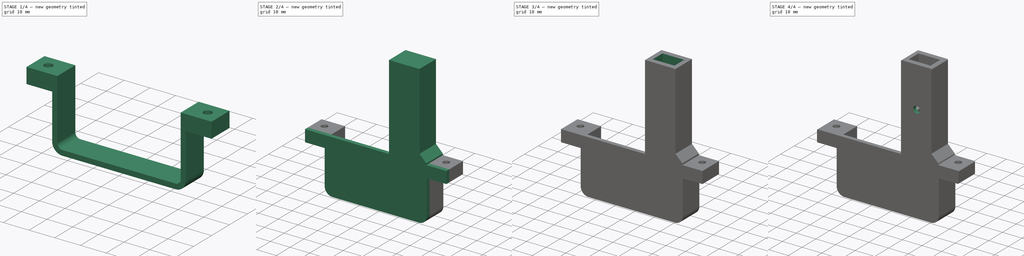
[diagram: build sequence overview — one tinted view per stage of 4, left to right]
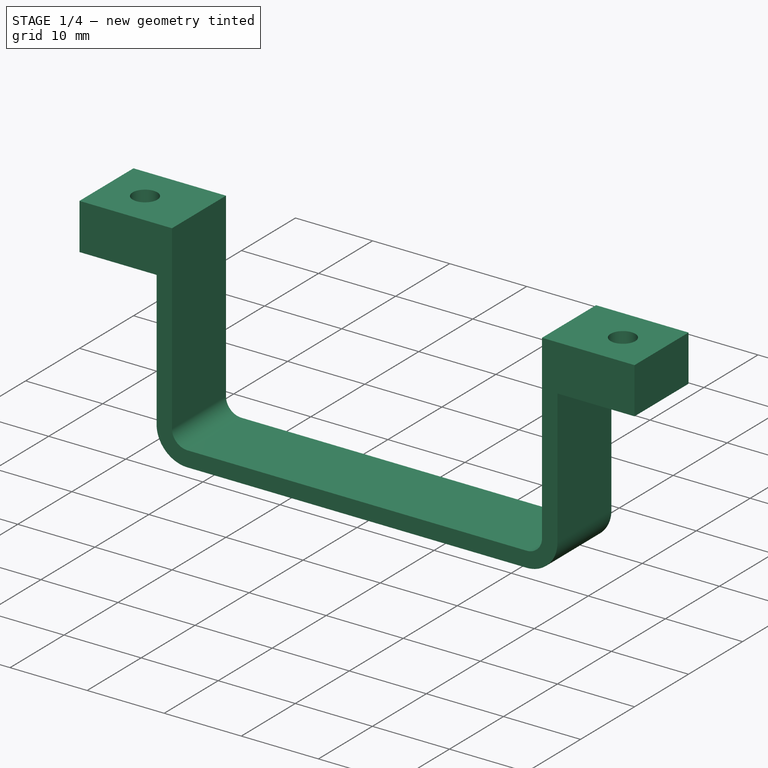
[diagram: stage 1 of 4 — iso view after this stage's code; geometry added in this stage tinted green]
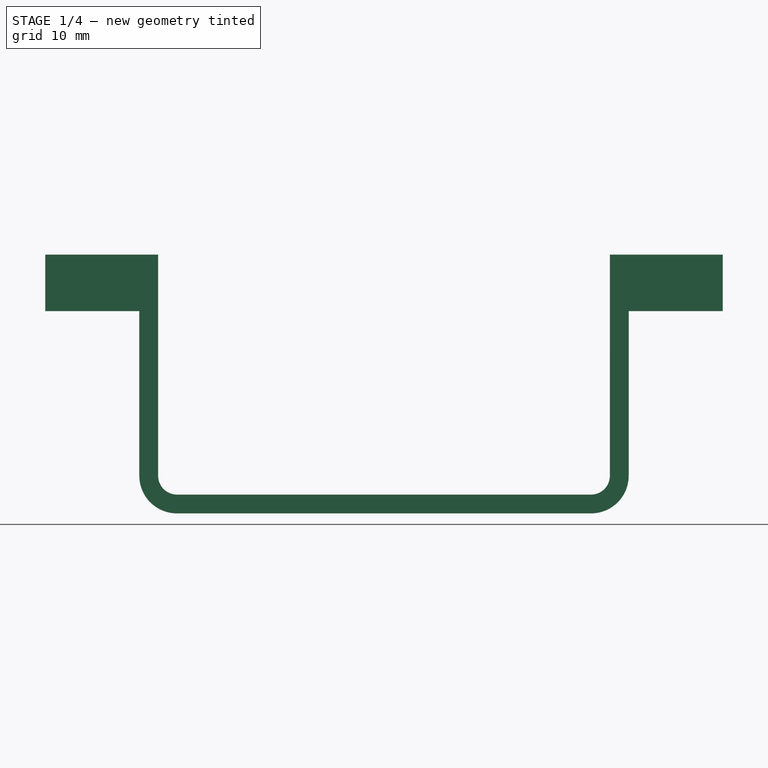
[diagram: stage 1 of 4 — front view after this stage's code; geometry added in this stage tinted green]
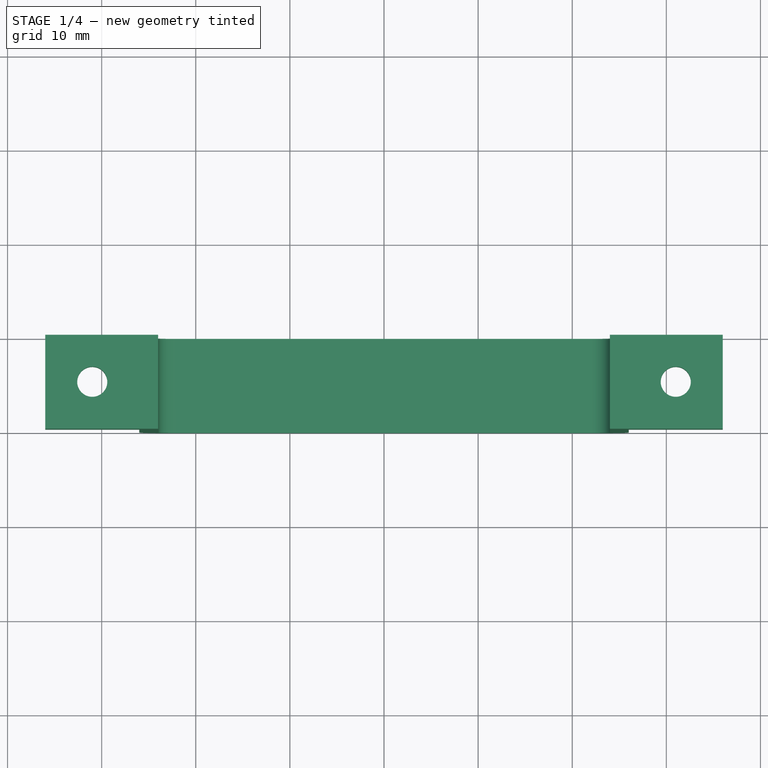
[diagram: stage 1 of 4 — top view after this stage's code; geometry added in this stage tinted green]
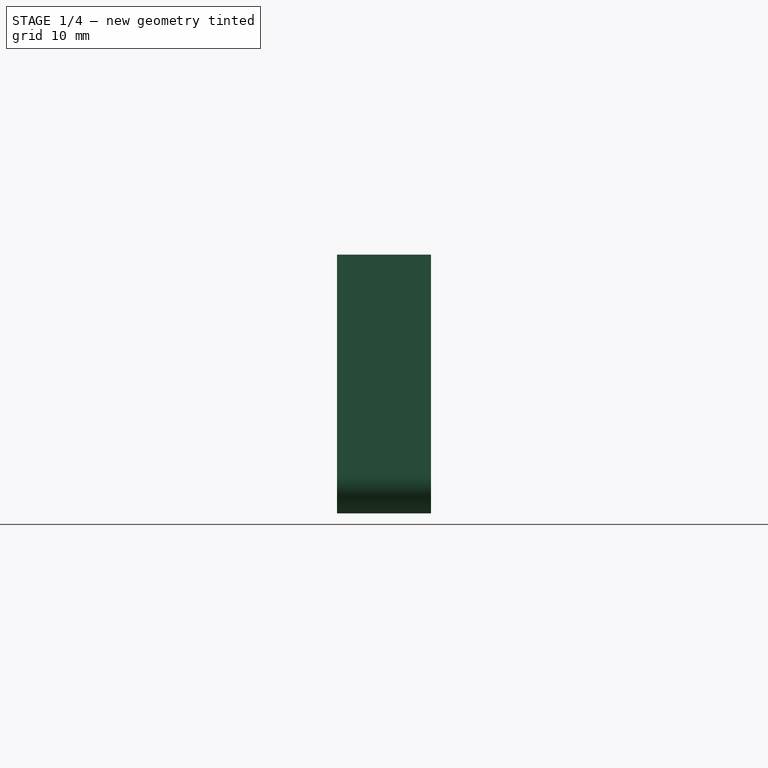
[diagram: stage 1 of 4 — right view after this stage's code; geometry added in this stage tinted green]
FCSTD DOCUMENT  (FreeCAD 0.18R4 (GitTag))
Label: LiPo_Mountingbracket_Rear
License: CreativeCommons Attribution-NonCommercial
LicenseURL: http://creativecommons.org/licenses/by-nc/4.0/
objects: Sketcher::SketchObject×10, PartDesign::Pocket×7, PartDesign::Pad×4, PartDesign::Fillet×1, PartDesign::Body×1, App::Part×1
note: 34 computed .brp shape members not serialized (recipe doc carries the construction recipe); baked Part::Feature solids carry a one-line shape summary decoded from their .brp

FEATURE [Sketcher::SketchObject] Sketch360
  MapMode = 5
  Placement = pos=(0,0,0) rot=(1,0,0;1.5708rad)
  Support = -> [XZ_Plane208]
  sketch-geometry (16):
    g0: LineSegment StartX=-36 StartY=0 StartZ=0 EndX=-36 EndY=-6 EndZ=0
    g1: LineSegment StartX=-36 StartY=-6 StartZ=0 EndX=-26 EndY=-6 EndZ=0
    g2: LineSegment StartX=-26 StartY=-6 StartZ=0 EndX=-26 EndY=-23.5 EndZ=0
    g3: LineSegment StartX=-22 StartY=-27.5 StartZ=0 EndX=22 EndY=-27.5 EndZ=0
    g4: LineSegment StartX=26 StartY=-23.5 StartZ=0 EndX=26 EndY=-6 EndZ=0
    g5: LineSegment StartX=26 StartY=-6 StartZ=0 EndX=36 EndY=-6 EndZ=0
    g6: LineSegment StartX=36 StartY=-6 StartZ=0 EndX=36 EndY=0 EndZ=0
    g7: LineSegment StartX=36 StartY=0 StartZ=0 EndX=24 EndY=0 EndZ=0
    g8: LineSegment StartX=24 StartY=0 StartZ=0 EndX=24 EndY=-23.5 EndZ=0
    g9: LineSegment StartX=22 StartY=-25.5 StartZ=0 EndX=-22 EndY=-25.5 EndZ=0
    g10: LineSegment StartX=-24 StartY=-23.5 StartZ=0 EndX=-24 EndY=0 EndZ=0
    g11: LineSegment StartX=-24 StartY=0 StartZ=0 EndX=-36 EndY=0 EndZ=0
    g12: ArcOfCircle CenterX=-22 CenterY=-23.5 CenterZ=0 NormalX=0 NormalY=0 NormalZ=1 AngleXU=0 Radius=2 StartAngle=3.14159 EndAngle=4.71239
    g13: ArcOfCircle CenterX=-22 CenterY=-23.5 CenterZ=0 NormalX=0 NormalY=0 NormalZ=1 AngleXU=0 Radius=4 StartAngle=3.14159 EndAngle=4.71239
    g14: ArcOfCircle CenterX=22 CenterY=-23.5 CenterZ=0 NormalX=0 NormalY=0 NormalZ=1 AngleXU=0 Radius=2 StartAngle=4.71239 EndAngle=6.28319
    g15: ArcOfCircle CenterX=22 CenterY=-23.5 CenterZ=0 NormalX=0 NormalY=0 NormalZ=1 AngleXU=0 Radius=4 StartAngle=4.71239 EndAngle=6.28319
  constraints (41):
    c: PointOnObject(g0,g-1)
    c: Vertical(g0)
    c: Coincident(g0,g1)
    c: Horizontal(g1)
    c: Coincident(g1,g2)
    c: Vertical(g2)
    c: Horizontal(g3)
    c: Vertical(g4)
    c: Coincident(g4,g5)
    c: Coincident(g5,g6)
    c: Vertical(g6)
    c: Coincident(g6,g7)
    c: Horizontal(g7)
    c: Coincident(g7,g8)
    c: Vertical(g8)
    c: Horizontal(g9)
    c: Vertical(g10)
    c: Coincident(g10,g11)
    c: Coincident(g11,g0)
    c: Horizontal(g11)
    c: Symmetric(g7,g10,g-1)
    c: DistanceX(g10,g7) = 48
    c: Symmetric(g5,g0,g-2)
    c: Symmetric(g1,g4,g-2)
    c: DistanceY(g0,g0) = 6
    c: DistanceX(g11,g11) = 12
    c: Tangent(g9,g12) = 1.5708
    c: Tangent(g10,g12) = 1.5708
    c: Tangent(g2,g13) = -1.5708
    c: Tangent(g3,g13) = -1.5708
    c: Tangent(g8,g14) = 1.5708
    c: Tangent(g9,g14) = 1.5708
    c: Tangent(g3,g15) = -1.5708
    c: Tangent(g4,g15) = -1.5708
    c: Radius(g12) = 2
    c: Radius(g13) = 4
    c: Horizontal(g10,g2)
    c: Horizontal(g8,g4)
    c: Vertical(g3,g9)
    c: DistanceY(g3,g10) = 27.5
    c: Equal(g14,g12)
FEATURE [PartDesign::Pad] Pad189  label="Baseplate018"
  Length = 10
  Length2 = 100
  Placement = pos=(0,0,0) rot=(1,0,0;1.5708rad)
  Profile = -> Sketch360
  Reversed = true
  Type = 0
FEATURE [Sketcher::SketchObject] Sketch365
  MapMode = 5
  Placement = pos=(0,-1.3e-15,-6) rot=(1,0,0;3.14159rad)
  Support = -> [Pad189]
  sketch-geometry (2):
    g0: Circle CenterX=-31 CenterY=-5 CenterZ=0 NormalX=0 NormalY=0 NormalZ=1 AngleXU=0 Radius=1.6
    g1: Circle CenterX=31 CenterY=-5 CenterZ=0 NormalX=0 NormalY=0 NormalZ=1 AngleXU=0 Radius=1.6
  constraints (5):
    c: Symmetric(g0,g1,g-2)
    c: Equal(g0,g1)
    c: Radius(g0) = 1.6
    c: DistanceX(g0,g-1) = 31
    c: DistanceY(g0,g-1) = 5
FEATURE [PartDesign::Pocket] Pocket167  label="M3 Throughhole"
  BaseFeature = -> Pad189
  Length = 6
  Length2 = 100
  Placement = pos=(0,0,0) rot=(1,0,0;1.5708rad)
  Profile = -> Sketch365
  Type = 0
FEATURE [Sketcher::SketchObject] Sketch364
  MapMode = 5
  Placement = pos=(0,-1.3e-15,-6) rot=(1,0,0;3.14159rad)
  Support = -> [Pocket167]
  sketch-geometry (2):
    g0: Circle CenterX=-31 CenterY=-5 CenterZ=0 NormalX=0 NormalY=0 NormalZ=1 AngleXU=0 Radius=2.85
    g1: Circle CenterX=31 CenterY=-5 CenterZ=0 NormalX=0 NormalY=0 NormalZ=1 AngleXU=0 Radius=2.85
  constraints (5):
    c: Equal(g1,g0)
    c: Radius(g0) = 2.85
    c: DistanceY(g0,g-1) = 5
    c: Symmetric(g0,g1,g-2)
    c: DistanceX(g1) = 31
FEATURE [PartDesign::Pocket] Pocket166  label="M3 Head Hole"
  BaseFeature = -> Pocket167
  Length = 3
  Length2 = 100
  Placement = pos=(0,0,0) rot=(1,0,0;1.5708rad)
  Profile = -> Sketch364
  Type = 0
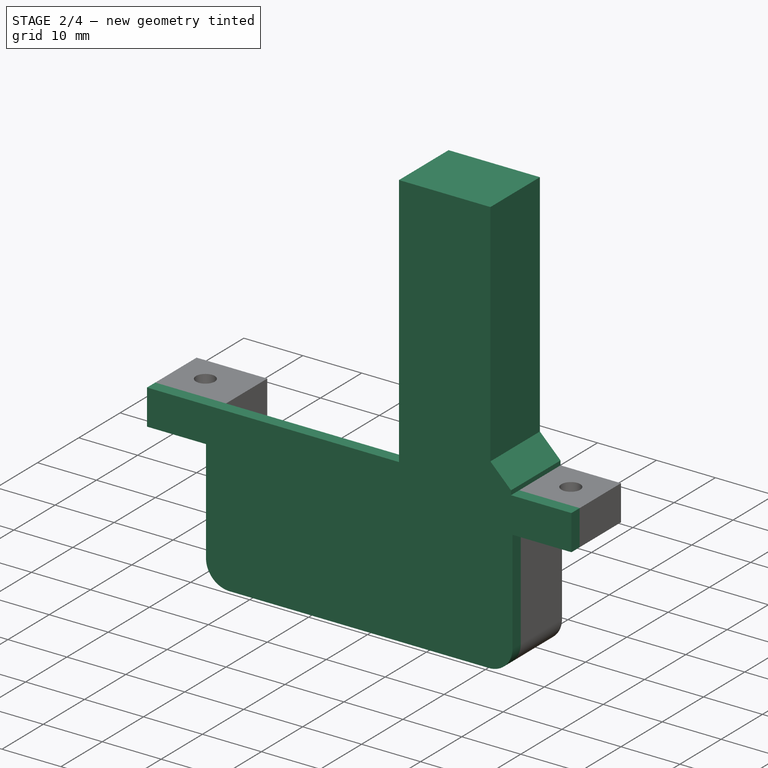
[diagram: stage 2 of 4 — iso view after this stage's code; geometry added in this stage tinted green]
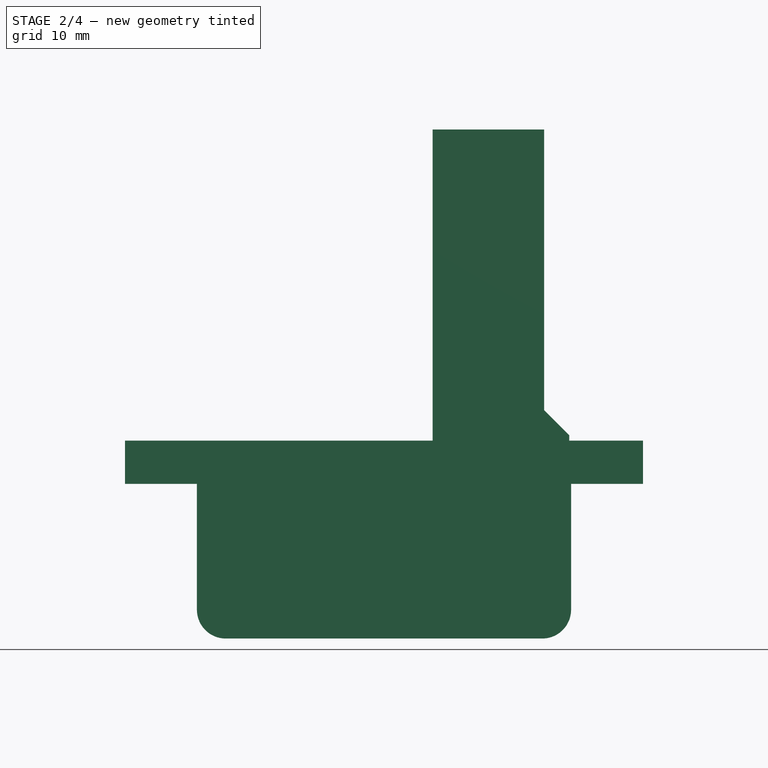
[diagram: stage 2 of 4 — front view after this stage's code; geometry added in this stage tinted green]
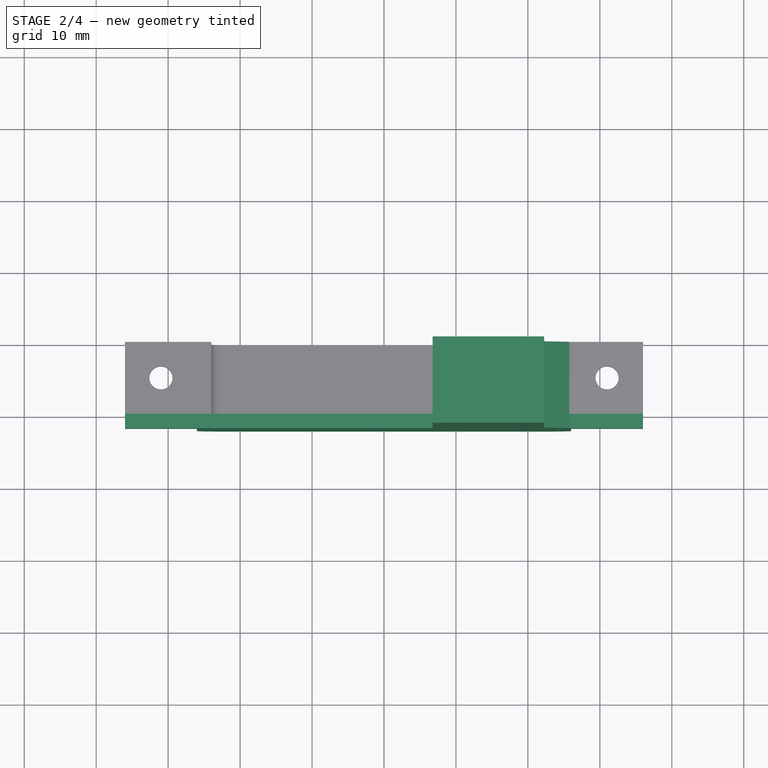
[diagram: stage 2 of 4 — top view after this stage's code; geometry added in this stage tinted green]
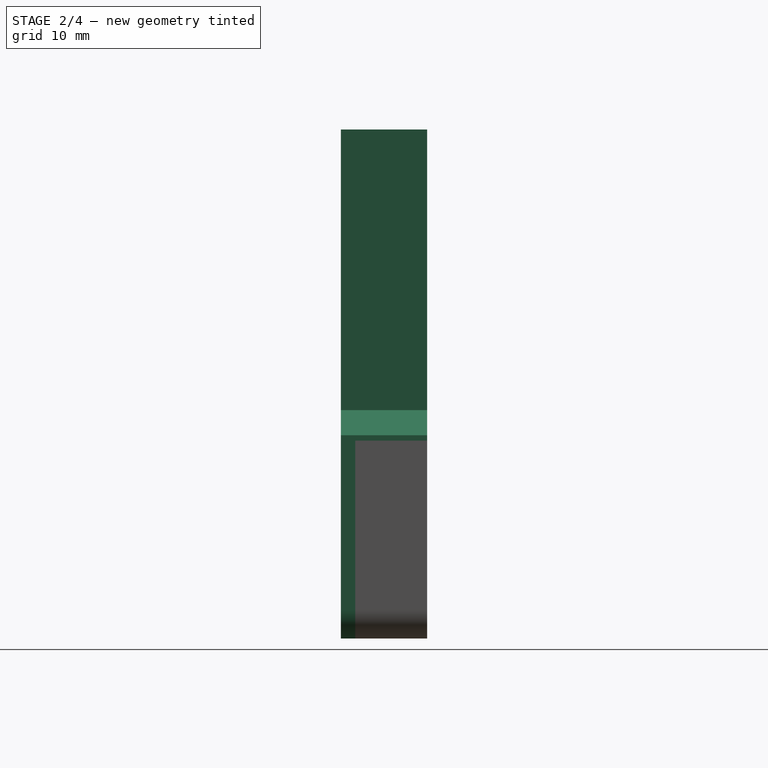
[diagram: stage 2 of 4 — right view after this stage's code; geometry added in this stage tinted green]
FEATURE [Sketcher::SketchObject] Sketch366
  MapMode = 5
  Placement = pos=(0,0,0) rot=(1,0,0;1.5708rad)
  Support = -> [Pocket166]
  sketch-geometry (10):
    g0: LineSegment StartX=-36 StartY=0 StartZ=0 EndX=-36 EndY=-6 EndZ=0
    g1: LineSegment StartX=-36 StartY=-6 StartZ=0 EndX=-26 EndY=-6 EndZ=0
    g2: LineSegment StartX=-26 StartY=-6 StartZ=0 EndX=-26 EndY=-23.5 EndZ=0
    g3: LineSegment StartX=-22 StartY=-27.5 StartZ=0 EndX=22 EndY=-27.5 EndZ=0
    g4: LineSegment StartX=26 StartY=-23.5 StartZ=0 EndX=26 EndY=-6 EndZ=0
    g5: LineSegment StartX=26 StartY=-6 StartZ=0 EndX=36 EndY=-6 EndZ=0
    g6: LineSegment StartX=36 StartY=-6 StartZ=0 EndX=36 EndY=0 EndZ=0
    g7: LineSegment StartX=36 StartY=0 StartZ=0 EndX=-36 EndY=0 EndZ=0
    g8: ArcOfCircle CenterX=-22 CenterY=-23.5 CenterZ=0 NormalX=0 NormalY=0 NormalZ=1 AngleXU=0 Radius=4 StartAngle=3.14159 EndAngle=4.71239
    g9: ArcOfCircle CenterX=22 CenterY=-23.5 CenterZ=0 NormalX=0 NormalY=0 NormalZ=1 AngleXU=0 Radius=4 StartAngle=4.71239 EndAngle=6.28319
  constraints (26):
    c: PointOnObject(g0,g-1)
    c: Vertical(g0)
    c: Coincident(g0,g1)
    c: Horizontal(g1)
    c: Coincident(g1,g2)
    c: Vertical(g2)
    c: Horizontal(g3)
    c: Vertical(g4)
    c: Coincident(g4,g5)
    c: Horizontal(g5)
    c: Coincident(g5,g6)
    c: Vertical(g6)
    c: Coincident(g6,g7)
    c: Coincident(g7,g0)
    c: Symmetric(g0,g6,g-1)
    c: Symmetric(g1,g4,g-2)
    c: Tangent(g2,g8) = -1.5708
    c: Tangent(g3,g8) = -1.5708
    c: Tangent(g3,g9) = -1.5708
    c: Tangent(g4,g9) = -1.5708
    c: Equal(g9,g8)
    c: DistanceY(g0,g0) = 6
    c: DistanceX(g7,g7) = 72
    c: DistanceY(g3,g0) = 27.5
    c: Radius(g8) = 4
    c: DistanceX(g1,g4) = 52
FEATURE [PartDesign::Pad] Pad190  label="Wall"
  BaseFeature = -> Pocket166
  Length = 2
  Length2 = 100
  Placement = pos=(0,0,0) rot=(1,0,0;1.5708rad)
  Profile = -> Sketch366
  Type = 0
FEATURE [Sketcher::SketchObject] Sketch363
  MapMode = 5
  Placement = pos=(0,-2,0) rot=(1,0,0;1.5708rad)
  Support = -> [Pad190]
  sketch-geometry (6):
    g0: LineSegment StartX=6.75 StartY=0 StartZ=0 EndX=6.75 EndY=5 EndZ=0
    g1: LineSegment StartX=6.75 StartY=5 StartZ=0 EndX=22.25 EndY=5 EndZ=0
    g2: LineSegment StartX=22.25 StartY=5 StartZ=0 EndX=22.25 EndY=4.25 EndZ=0
    g3: LineSegment StartX=22.25 StartY=4.25 StartZ=0 EndX=25.75 EndY=0.75 EndZ=0
    g4: LineSegment StartX=25.75 StartY=0.75 StartZ=0 EndX=25.75 EndY=0 EndZ=0
    g5: LineSegment StartX=25.75 StartY=0 StartZ=0 EndX=6.75 EndY=0 EndZ=0
  constraints (18):
    c: PointOnObject(g0,g-1)
    c: Vertical(g0)
    c: Coincident(g0,g1)
    c: Horizontal(g1)
    c: Coincident(g1,g2)
    c: Vertical(g2)
    c: Coincident(g2,g3)
    c: Coincident(g3,g4)
    c: PointOnObject(g4,g-1)
    c: Coincident(g4,g5)
    c: Coincident(g5,g0)
    c: DistanceY(g0,g0) = 5
    c: DistanceX(g-1,g0) = 6.75
    c: DistanceX(g1,g1) = 15.5
    c: Vertical(g4)
    c: Equal(g2,g4)
    c: Angle(g3,g4) = 2.35619
    c: DistanceX(g5,g5) = 19
FEATURE [PartDesign::Pad] Pad192  label="ABClip Base"
  BaseFeature = -> Pad190
  Length = 12
  Length2 = 100
  Placement = pos=(0,0,0) rot=(1,0,0;1.5708rad)
  Profile = -> Sketch363
  Reversed = true
  Type = 0
FEATURE [PartDesign::Pad] Pad191  label="ABClip Tower"
  BaseFeature = -> Pad192
  Length = 38.25
  Length2 = 100
  Placement = pos=(0,0,0) rot=(1,0,0;1.5708rad)
  Profile = -> Pad192 [Face40]
  Type = 0
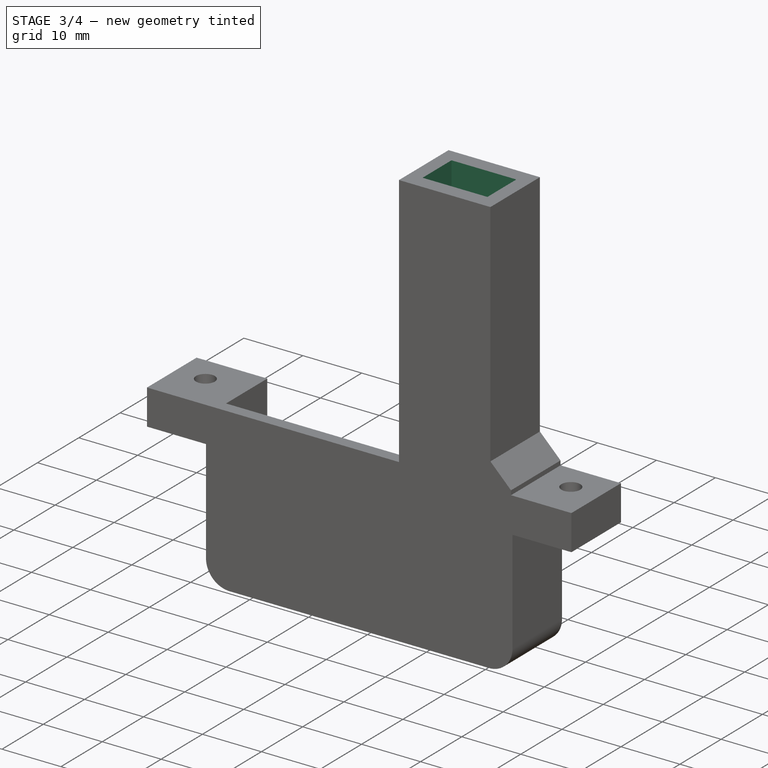
[diagram: stage 3 of 4 — iso view after this stage's code; geometry added in this stage tinted green]
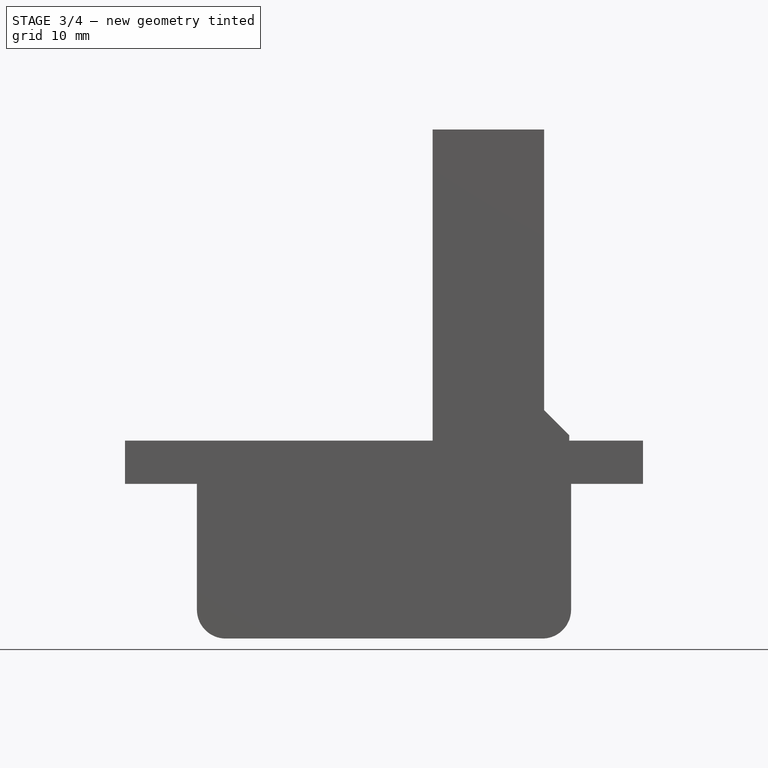
[diagram: stage 3 of 4 — front view after this stage's code; geometry added in this stage tinted green]
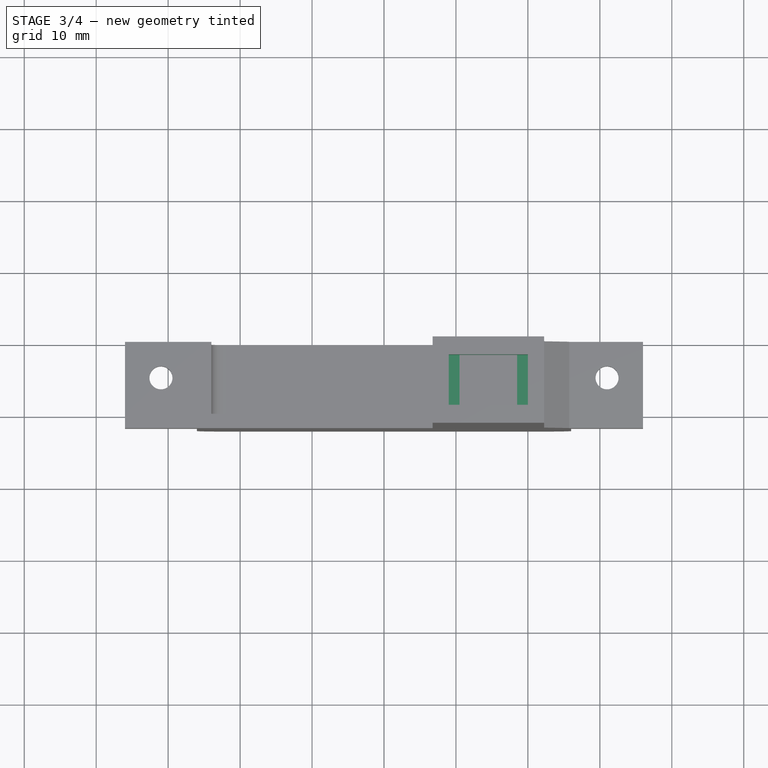
[diagram: stage 3 of 4 — top view after this stage's code; geometry added in this stage tinted green]
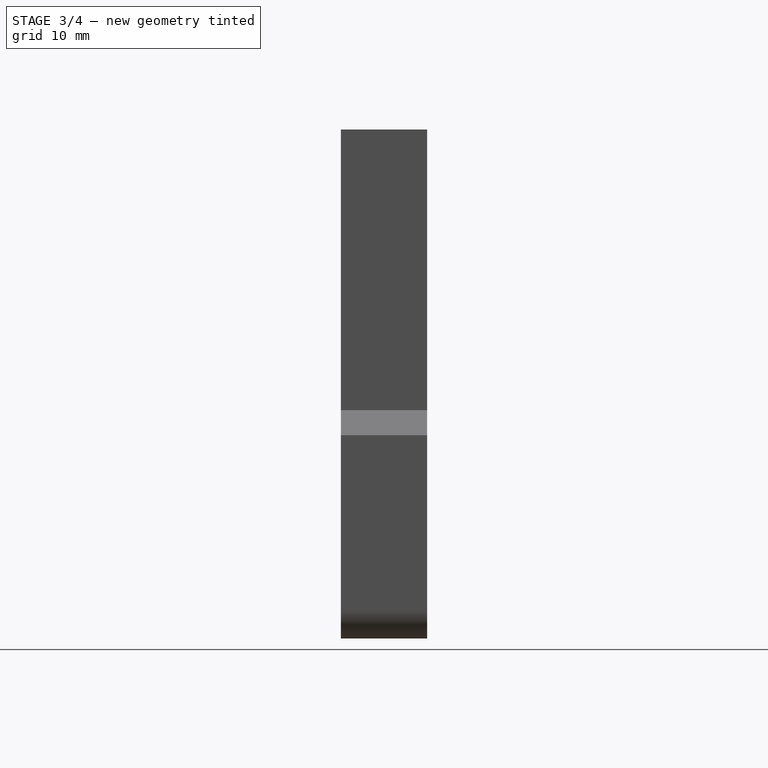
[diagram: stage 3 of 4 — right view after this stage's code; geometry added in this stage tinted green]
FEATURE [Sketcher::SketchObject] Sketch361
  MapMode = 5
  Placement = pos=(0,1.92e-14,43.25) rot=(0,0,1;3.14159rad)
  Support = -> [Pad191]
  sketch-geometry (4):
    g0: LineSegment StartX=-20 StartY=-7.5 StartZ=0 EndX=-9 EndY=-7.5 EndZ=0
    g1: LineSegment StartX=-9 StartY=-7.5 StartZ=0 EndX=-9 EndY=-0.5 EndZ=0
    g2: LineSegment StartX=-9 StartY=-0.5 StartZ=0 EndX=-20 EndY=-0.5 EndZ=0
    g3: LineSegment StartX=-20 StartY=-0.5 StartZ=0 EndX=-20 EndY=-7.5 EndZ=0
  constraints (12):
    c: Coincident(g0,g1)
    c: Coincident(g1,g2)
    c: Coincident(g2,g3)
    c: Coincident(g3,g0)
    c: Horizontal(g0)
    c: Horizontal(g2)
    c: Vertical(g1)
    c: Vertical(g3)
    c: DistanceX(g2,g2) = 11
    c: DistanceY(g1,g1) = 7
    c: DistanceX(g1,g-1) = 9
    c: DistanceY(g1,g-1) = 0.5
FEATURE [PartDesign::Pocket] Pocket170  label="ABClip JST-XH Hole"
  BaseFeature = -> Pad191
  Length = 4
  Length2 = 100
  Placement = pos=(0,0,0) rot=(1,0,0;1.5708rad)
  Profile = -> Sketch361
  Type = 0
FEATURE [Sketcher::SketchObject] Sketch367
  MapMode = 5
  Placement = pos=(0,10,-5.6e-15) rot=(-1,0,0;1.5708rad)
  Support = -> [Pocket170]
  sketch-geometry (4):
    g0: LineSegment StartX=8.25 StartY=-39.25 StartZ=0 EndX=20.75 EndY=-39.25 EndZ=0
    g1: LineSegment StartX=20.75 StartY=-39.25 StartZ=0 EndX=20.75 EndY=-18.75 EndZ=0
    g2: LineSegment StartX=20.75 StartY=-18.75 StartZ=0 EndX=8.25 EndY=-18.75 EndZ=0
    g3: LineSegment StartX=8.25 StartY=-18.75 StartZ=0 EndX=8.25 EndY=-39.25 EndZ=0
  constraints (12):
    c: Coincident(g0,g1)
    c: Coincident(g1,g2)
    c: Coincident(g2,g3)
    c: Coincident(g3,g0)
    c: Horizontal(g0)
    c: Horizontal(g2)
    c: Vertical(g1)
    c: Vertical(g3)
    c: DistanceY(g3,g3) = 20.5
    c: DistanceX(g2,g2) = 12.5
    c: DistanceX(g-1,g2) = 8.25
    c: DistanceY(g2,g-1) = 18.75
FEATURE [PartDesign::Pocket] Pocket168  label="ABClip Pocket"
  BaseFeature = -> Pocket170
  Length = 10
  Length2 = 100
  Placement = pos=(0,0,0) rot=(1,0,0;1.5708rad)
  Profile = -> Sketch367
  Type = 0
FEATURE [Sketcher::SketchObject] Sketch362
  MapMode = 5
  Placement = pos=(0,10,-6.7e-15) rot=(-1,0,0;1.5708rad)
  Support = -> [Pocket168]
  sketch-geometry (4):
    g0: LineSegment StartX=10.5 StartY=-18.75 StartZ=0 EndX=18.5 EndY=-18.75 EndZ=0
    g1: LineSegment StartX=18.5 StartY=-18.75 StartZ=0 EndX=18.5 EndY=0 EndZ=0
    g2: LineSegment StartX=18.5 StartY=0 StartZ=0 EndX=10.5 EndY=0 EndZ=0
    g3: LineSegment StartX=10.5 StartY=0 StartZ=0 EndX=10.5 EndY=-18.75 EndZ=0
  constraints (12):
    c: Coincident(g0,g1)
    c: Coincident(g1,g2)
    c: Coincident(g2,g3)
    c: Coincident(g3,g0)
    c: Horizontal(g0)
    c: Horizontal(g2)
    c: Vertical(g1)
    c: Vertical(g3)
    c: PointOnObject(g1,g-1)
    c: DistanceX(g2,g2) = 8
    c: DistanceY(g3,g3) = 18.75
    c: DistanceX(g-1,g2) = 10.5
FEATURE [PartDesign::Pocket] Pocket169  label="ABClip Cable Pocket"
  BaseFeature = -> Pocket168
  Length = 10
  Length2 = 100
  Placement = pos=(0,0,0) rot=(1,0,0;1.5708rad)
  Profile = -> Sketch362
  Type = 0
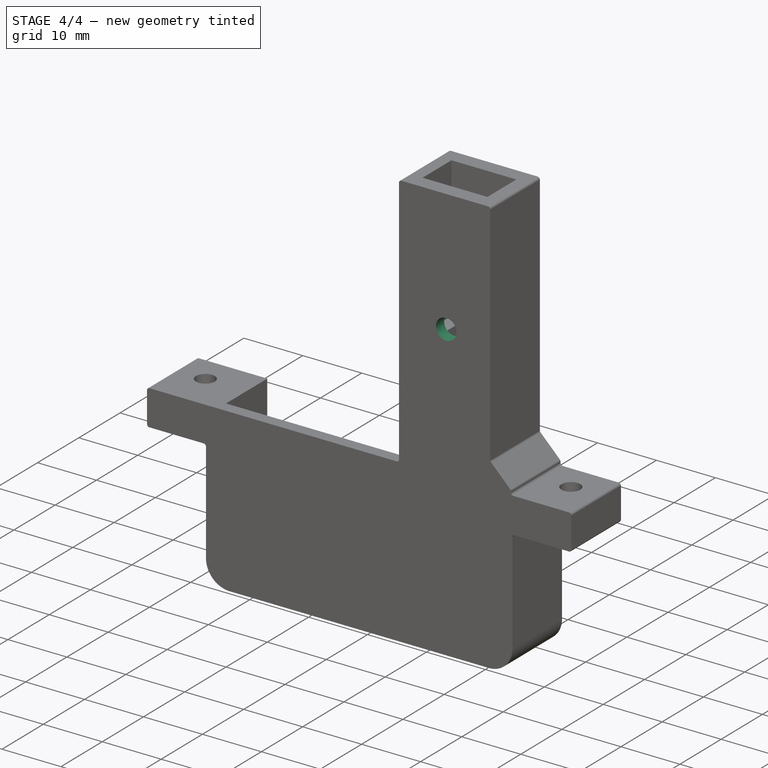
[diagram: stage 4 of 4 — iso view after this stage's code; geometry added in this stage tinted green]
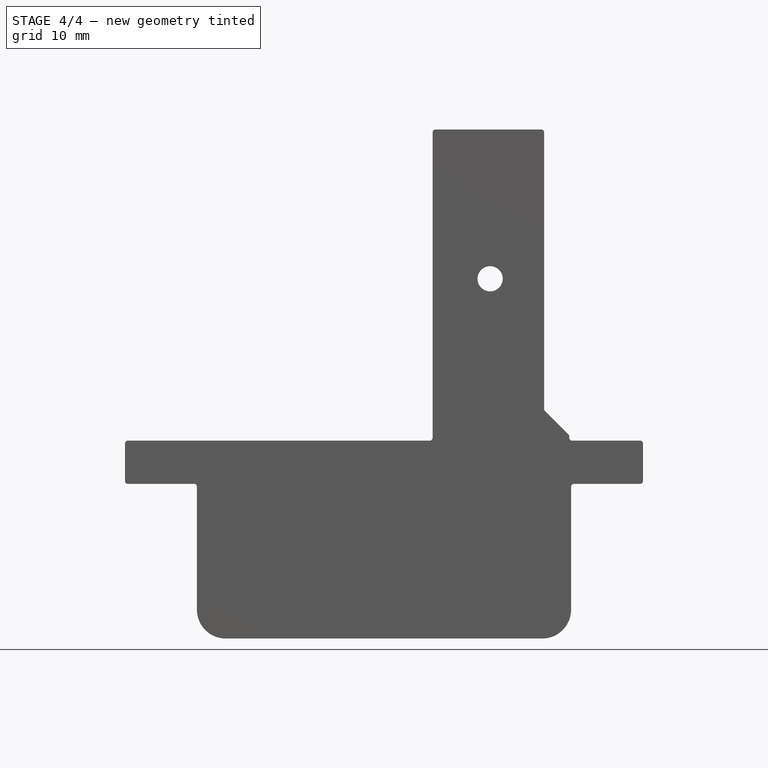
[diagram: stage 4 of 4 — front view after this stage's code; geometry added in this stage tinted green]
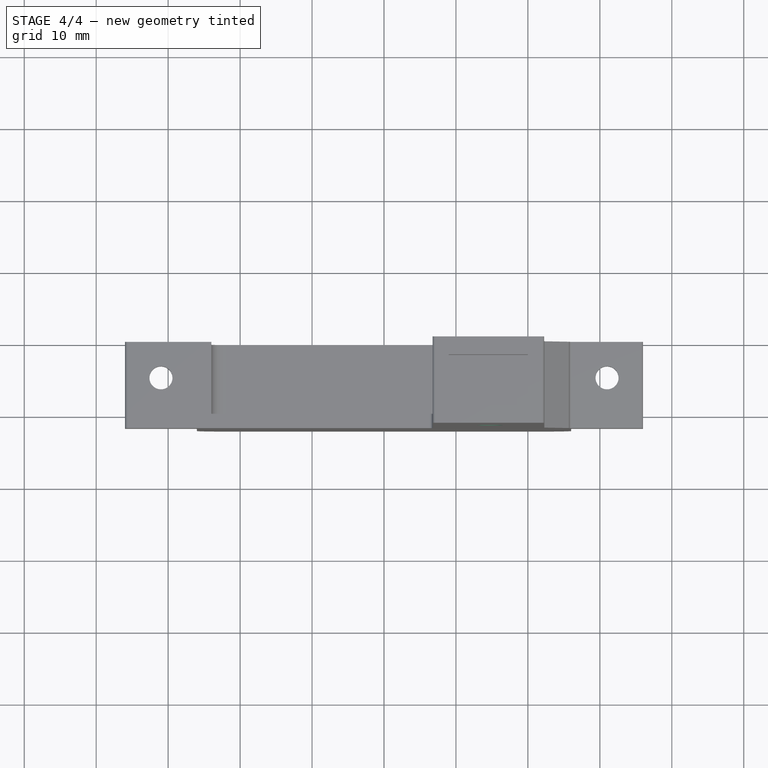
[diagram: stage 4 of 4 — top view after this stage's code; geometry added in this stage tinted green]
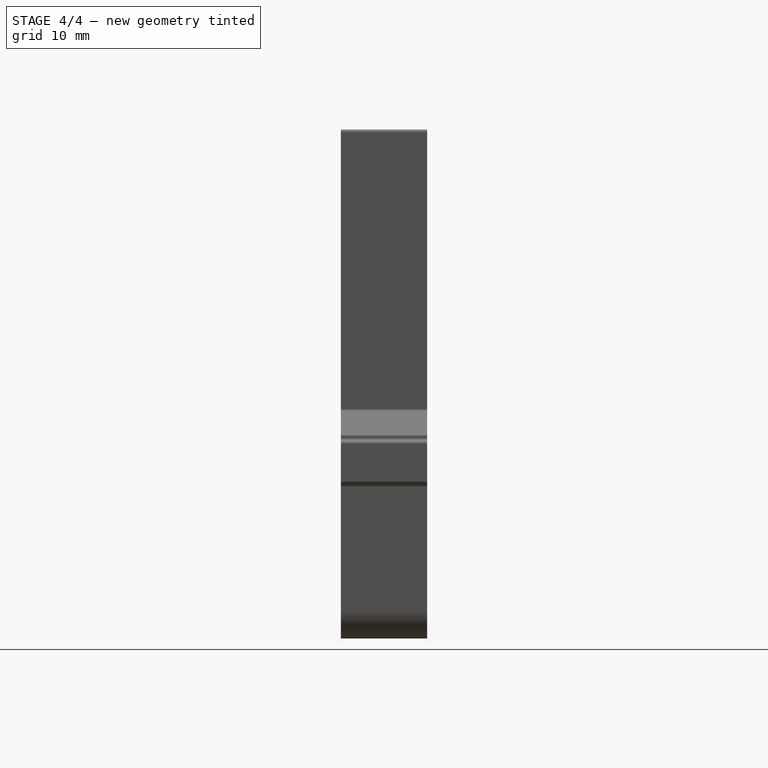
[diagram: stage 4 of 4 — right view after this stage's code; geometry added in this stage tinted green]
FEATURE [Sketcher::SketchObject] Sketch
  MapMode = 5
  Placement = pos=(0,1e-15,0) rot=(-1,0,0;1.5708rad)
  sketch-geometry (1):
    g0: Circle CenterX=14.75 CenterY=-22.5 CenterZ=0 NormalX=0 NormalY=0 NormalZ=1 AngleXU=0 Radius=1.75
  constraints (3):
    c: Radius(g0) = 1.75
    c: DistanceX(g-1,g0) = 14.75
    c: DistanceY(g0,g-1) = 22.5
FEATURE [PartDesign::Pocket] Pocket  label="ABClip Removal Hole"
  BaseFeature = -> Pocket169
  Length = 5
  Length2 = 100
  Placement = pos=(0,0,0) rot=(1,0,0;1.5708rad)
  Profile = -> Sketch
  Type = 0
FEATURE [PartDesign::Fillet] Fillet
  Base = -> Pocket [Edge35,Edge34,Edge134,Edge147,Edge121,Edge117,Edge116,Edge115,Edge112,Edge111,Edge105,Edge80]
  BaseFeature = -> Pocket
  Placement = pos=(0,0,0) rot=(1,0,0;1.5708rad)
  Radius = 0.4
FEATURE [Sketcher::SketchObject] Sketch368
  MapMode = 5
  Placement = pos=(6.75,0,0) rot=(0.707107,0,-0.707107;3.14159rad)
  Support = -> [Fillet]
  sketch-geometry (3):
    g0: ArcOfCircle CenterX=0 CenterY=-10 CenterZ=0 NormalX=0 NormalY=0 NormalZ=1 AngleXU=0 Radius=10 StartAngle=1.5708 EndAngle=3.14159
    g1: LineSegment StartX=-10 StartY=-10 StartZ=0 EndX=0 EndY=-10 EndZ=0
    g2: LineSegment StartX=0 StartY=-10 StartZ=0 EndX=6e-16 EndY=1.8e-15 EndZ=0
  constraints (8):
    c: PointOnObject(g0,g-2)
    c: Coincident(g1,g0)
    c: Horizontal(g1)
    c: Coincident(g2,g1)
    c: Coincident(g2,g0)
    c: Coincident(g0,g1)
    c: Coincident(g0,g-1)
    c: DistanceY(g2,g2) = 10
FEATURE [PartDesign::Pocket] Pocket171  label="Cable Cutout"
  BaseFeature = -> Fillet
  Length = 5
  Length2 = 100
  Placement = pos=(0,0,0) rot=(1,0,0;1.5708rad)
  Profile = -> Sketch368
  Type = 0
FEATURE [PartDesign::Body] Body138  label="LiPo_Mountingbracket_Rear_Body"
  Group = -> [Sketch360,Pad189,Sketch365,Pocket167,Sketch364,Pocket166,Sketch366,Pad190,Sketch363,Pad192,Pad191,Sketch361,Pocket170,Sketch367,Pocket168,Sketch362,Pocket169,Sketch,Pocket,Fillet,Sketch368,Pocket171]
  Origin = -> Origin208
  Tip = -> Pocket171
FEATURE [App::Part] Part  label="LiPo_Mountingbracket_Rear"
  Group = -> [Body138]
  Origin = -> Origin
  Placement = pos=(0,0,0) rot=(0,0.707107,0.707107;3.14159rad)
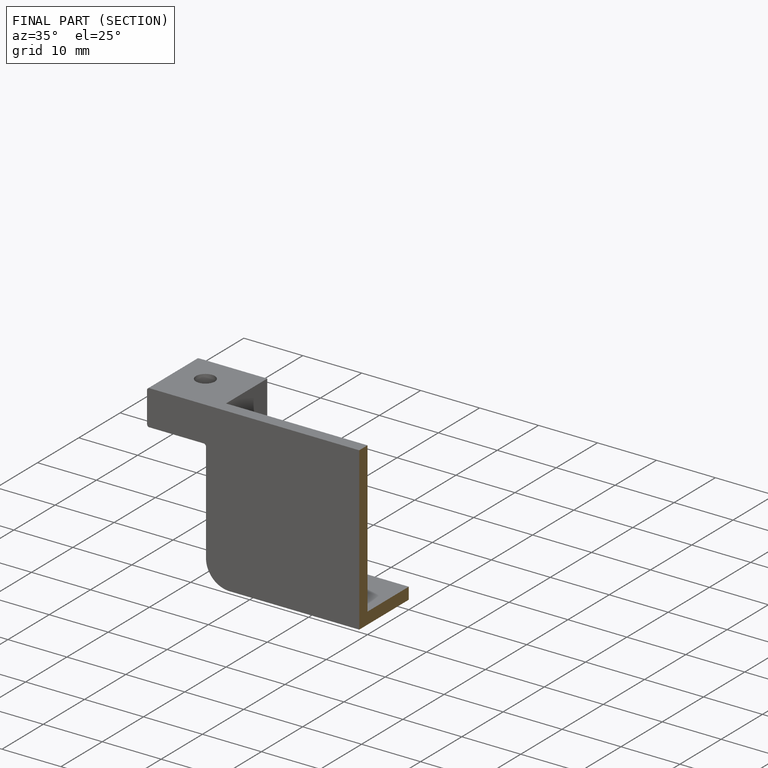
[diagram: finished part — half-section view (interior)]
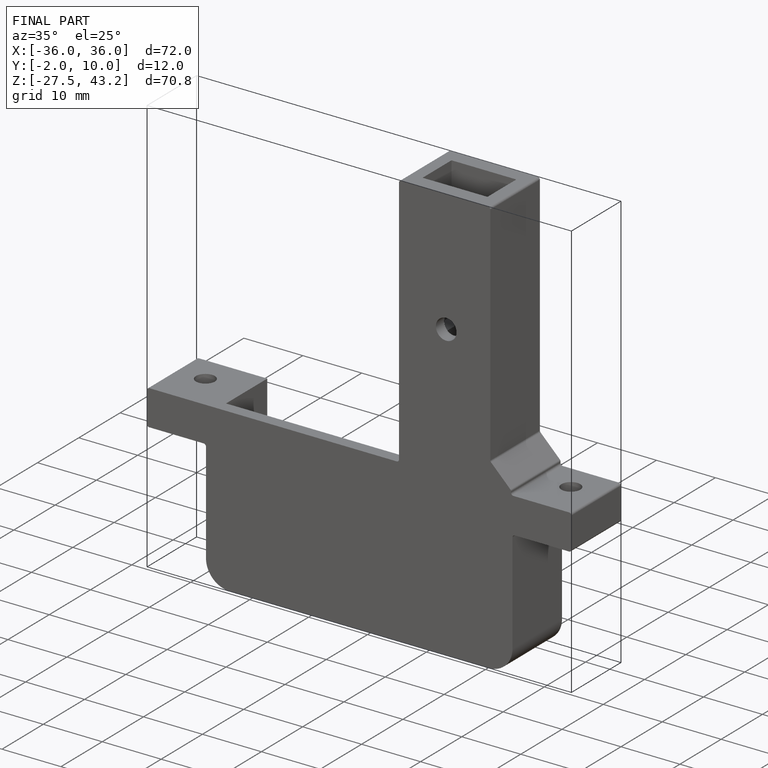
[diagram: finished part — iso view with bounding-box wireframe]
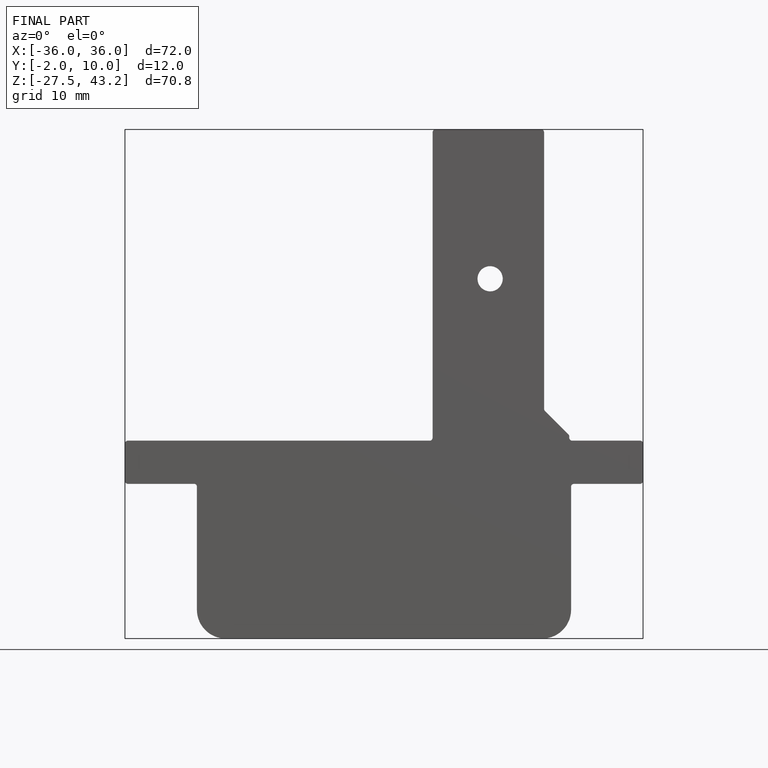
[diagram: finished part — front view with bounding-box wireframe]
